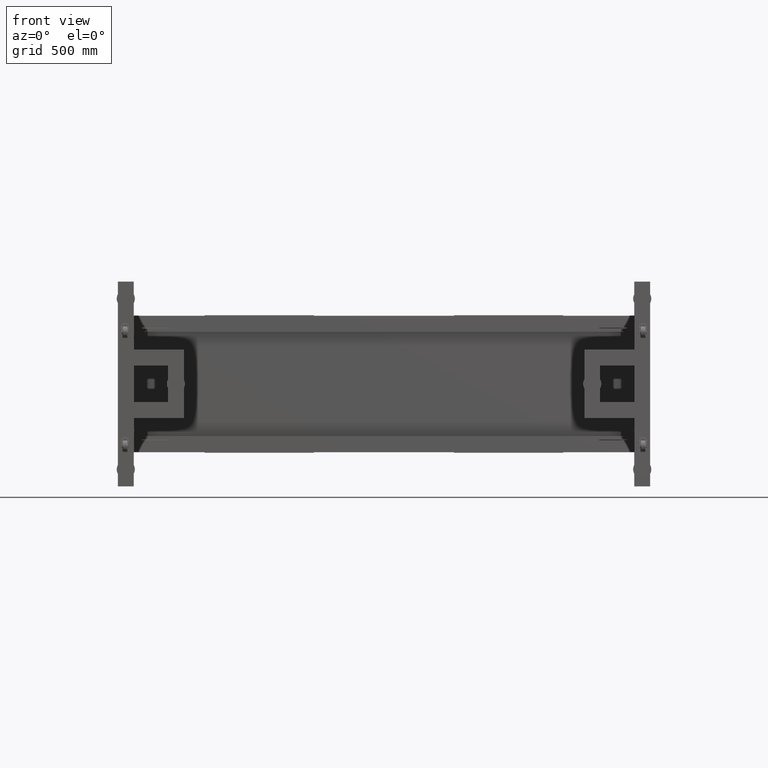
[diagram: clean part render]
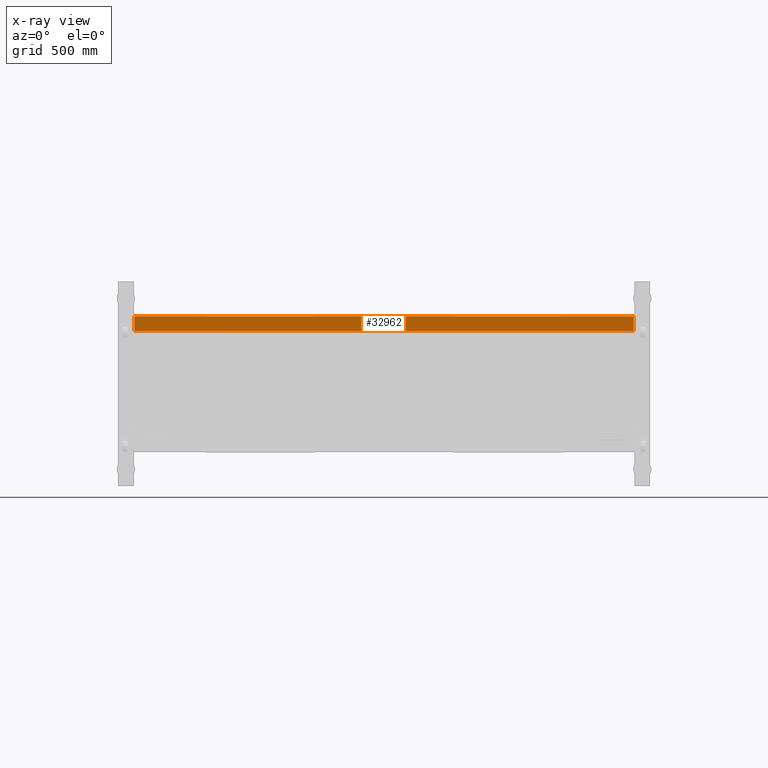
[diagram: x-ray — body ghosted, one internal face saturated and labeled with its STEP entity id]
A machine part, front view, then the same camera in x-ray: the body is ghosted and one INTERNAL B-rep face — a face not visible from any outside direction — is saturated and labeled: STEP entity #32962.
In plain terms, the highlighted planar face has unit normal (0, -1, -0).
Its self-contained STEP definition (entity closure, byte-faithful):
#4393 = ORIENTED_EDGE ( 'NONE', *, *, #70958, .F. ) ;
#9219 = FACE_OUTER_BOUND ( 'NONE', #62363, .T. ) ;
#11847 = LINE ( 'NONE', #17968, #11984 ) ;
#11984 = VECTOR ( 'NONE', #80572, 1000.000000000000000 ) ;
#16665 = CARTESIAN_POINT ( 'NONE',  ( -1266.172487437185964, 554.4410804020110390, 232.5000000000000853 ) ) ;
#17968 = CARTESIAN_POINT ( 'NONE',  ( 1229.827512562814036, 554.4410804020108117, 297.5000000000001137 ) ) ;
#23166 = CARTESIAN_POINT ( 'NONE',  ( 1229.827512562814036, 554.4410804020110390, 232.5000000000000853 ) ) ;
#23547 = AXIS2_PLACEMENT_3D ( 'NONE', #59161, #26029, #59969 ) ;
#26029 = DIRECTION ( 'NONE',  ( 0.000000000000000000, -1.000000000000000000, -2.999999999999999839E-15 ) ) ;
#28618 = VERTEX_POINT ( 'NONE', #66218 ) ;
#29992 = VECTOR ( 'NONE', #53431, 1000.000000000000000 ) ;
#32962 = ADVANCED_FACE ( 'NONE', ( #9219 ), #34198, .T. ) ;
#34198 = PLANE ( 'NONE',  #23547 ) ;
#35553 = LINE ( 'NONE', #42895, #72085 ) ;
#36147 = CARTESIAN_POINT ( 'NONE',  ( 929.8275125628159685, 554.4410804020113801, 232.5000000000000853 ) ) ;
#41202 = DIRECTION ( 'NONE',  ( -1.000000000000000000, -0.000000000000000000, 0.000000000000000000 ) ) ;
#42895 = CARTESIAN_POINT ( 'NONE',  ( -1266.172487437185964, 554.4410804020110390, 232.5000000000000853 ) ) ;
#44917 = CARTESIAN_POINT ( 'NONE',  ( 929.8275125628159685, 554.4410804020113801, 232.5000000000000853 ) ) ;
#47444 = VERTEX_POINT ( 'NONE', #79101 ) ;
#53431 = DIRECTION ( 'NONE',  ( 7.960835153364788038E-31, -2.999999999999999839E-15, 1.000000000000000000 ) ) ;
#53876 = LINE ( 'NONE', #23166, #60245 ) ;
#53892 = EDGE_CURVE ( 'NONE', #79045, #47444, #59197, .T. ) ;
#54794 = ORIENTED_EDGE ( 'NONE', *, *, #64402, .T. ) ;
#55997 = ORIENTED_EDGE ( 'NONE', *, *, #53892, .T. ) ;
#58177 = ORIENTED_EDGE ( 'NONE', *, *, #79170, .F. ) ;
#59161 = CARTESIAN_POINT ( 'NONE',  ( 1229.827512562814036, 554.4410804020110390, 232.5000000000000853 ) ) ;
#59197 = LINE ( 'NONE', #36147, #29992 ) ;
#59969 = DIRECTION ( 'NONE',  ( 0.000000000000000000, -2.999999999999999839E-15, 1.000000000000000000 ) ) ;
#60245 = VECTOR ( 'NONE', #41202, 1000.000000000000000 ) ;
#62363 = EDGE_LOOP ( 'NONE', ( #58177, #55997, #54794, #4393 ) ) ;
#64402 = EDGE_CURVE ( 'NONE', #47444, #28618, #11847, .T. ) ;
#64687 = VERTEX_POINT ( 'NONE', #16665 ) ;
#66218 = CARTESIAN_POINT ( 'NONE',  ( -1266.172487437185964, 554.4410804020108117, 297.5000000000001137 ) ) ;
#70958 = EDGE_CURVE ( 'NONE', #64687, #28618, #35553, .T. ) ;
#72085 = VECTOR ( 'NONE', #73175, 1000.000000000000000 ) ;
#73175 = DIRECTION ( 'NONE',  ( 0.000000000000000000, -2.999999999999999839E-15, 1.000000000000000000 ) ) ;
#79045 = VERTEX_POINT ( 'NONE', #44917 ) ;
#79101 = CARTESIAN_POINT ( 'NONE',  ( 929.8275125628159685, 554.4410804020111527, 297.5000000000001137 ) ) ;
#79170 = EDGE_CURVE ( 'NONE', #79045, #64687, #53876, .T. ) ;
#80572 = DIRECTION ( 'NONE',  ( -1.000000000000000000, -0.000000000000000000, 0.000000000000000000 ) ) ;